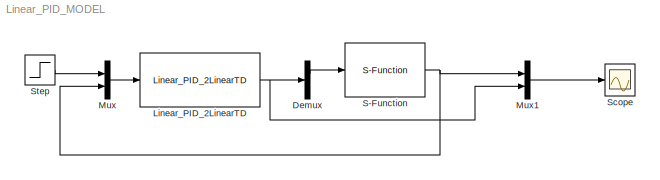
MODEL Linear_PID_MODEL
KIND model
BLOCK [Demux] Demux
  DisplayOption = bar
  Outputs = 2
  Ports = [1, 2]
  SID = 10
BLOCK [Reference] Linear_PID_2LinearTD  REF=ADRC/LinearPID/Linear_PID_2LinearTD
  Bet = [30,50,20]
  Ports = [1, 1]
  SID = 16
  SourceBlock = ADRC/LinearPID/Linear_PID_2LinearTD
  h = 0.01
  r0 = 2
  r1 = 100
BLOCK [Mux] Mux
  DisplayOption = bar
  Inputs = 2
  Ports = [2, 1]
  SID = 5
BLOCK [Mux] Mux1
  DisplayOption = bar
  Inputs = 2
  Ports = [2, 1]
  SID = 9
BLOCK [S-Function] S-Function
  EnableBusSupport = off
  FunctionName = Plant2
  Ports = [1, 1]
  SID = 2
BLOCK [Scope] Scope
  DataFormat = StructureWithTime
  Floating = off
  NumInputPorts = 1
  Ports = [1]
  SID = 4
  SampleTime = 0
  YMax = 3
  YMin = -4
BLOCK [Step] Step
  SID = 8
  SampleTime = 0
  Time = 0
LINE Demux:1 -> S-Function:1
NET Linear_PID_2LinearTD:1 -> Demux:1, Mux1:2
LINE Mux1:1 -> Scope:1
LINE Mux:1 -> Linear_PID_2LinearTD:1
NET S-Function:1 -> Mux1:1, Mux:2
LINE Step:1 -> Mux:1
note: NET lines group one-source signal fan-out (src -> all destinations, sorted); 1:1 wires keep LINE
